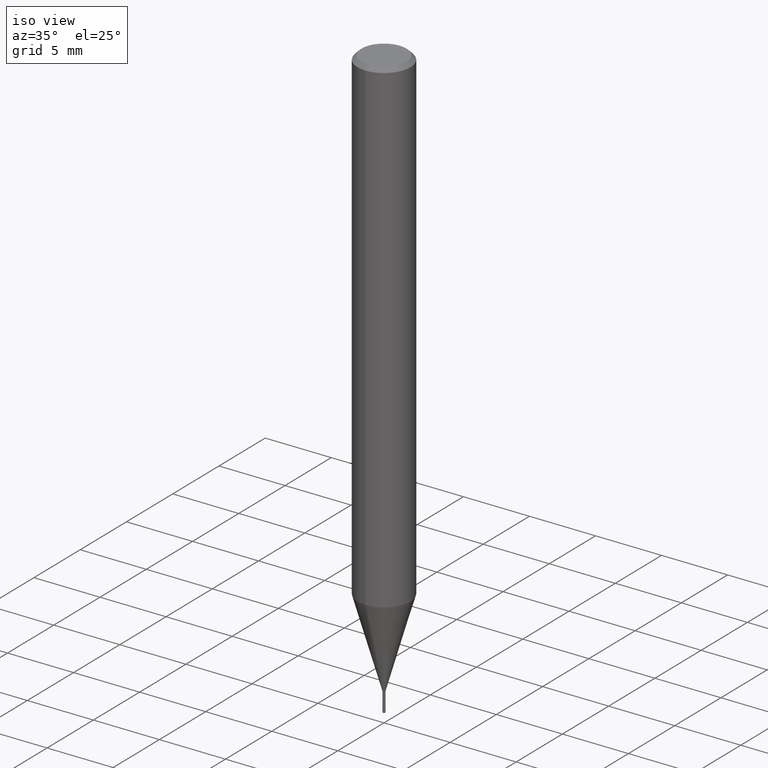
[diagram: clean part render]
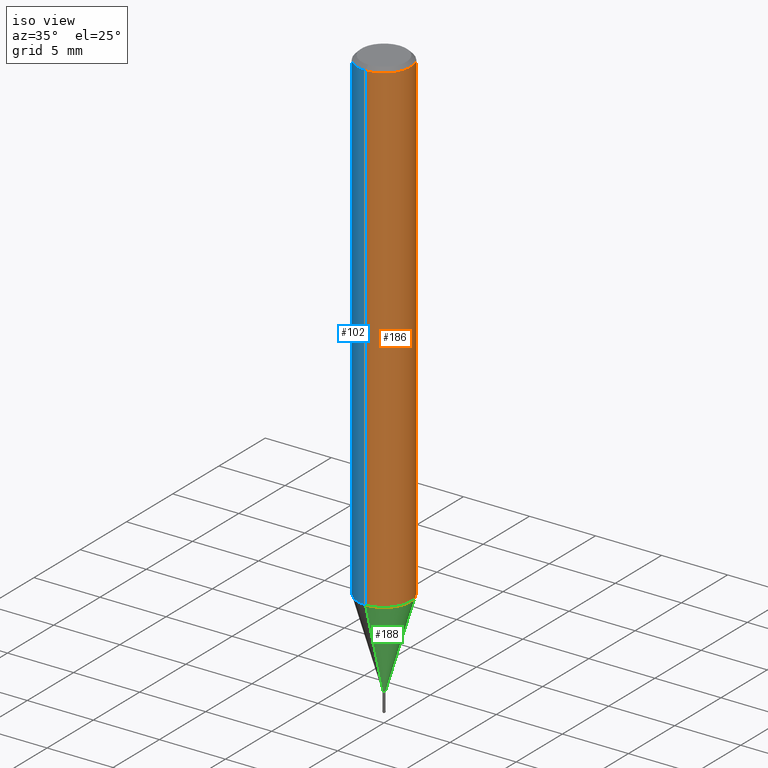
[diagram: same view with three faces highlighted in distinct colors, each labeled with its STEP entity id]
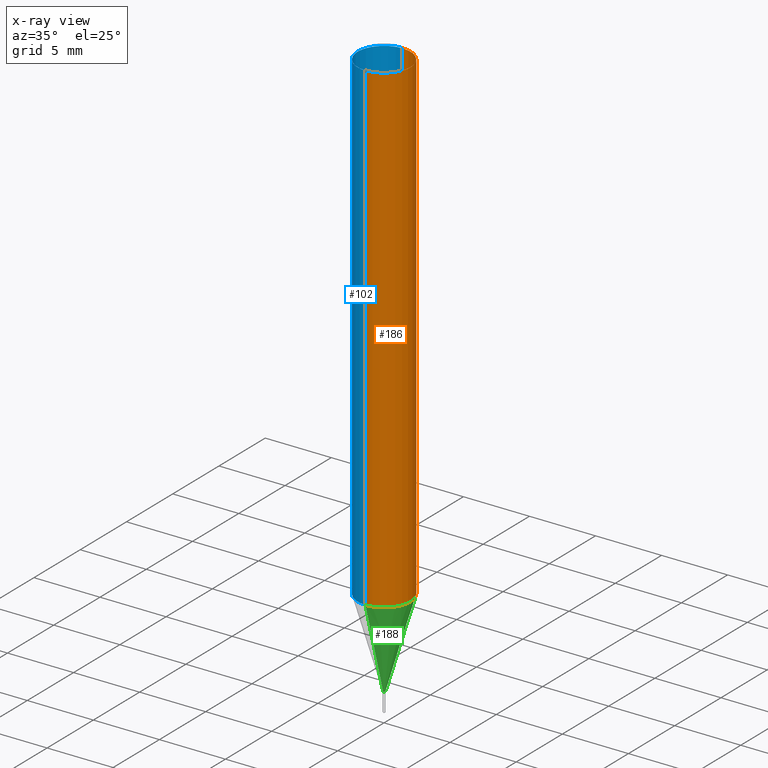
[diagram: x-ray of the same camera — body ghosted, the three highlighted faces saturated]
A machine part, iso view with three faces highlighted in distinct colors.
The next image is the same camera in x-ray (body ghosted, the three faces saturated) — at least one of them is partly hidden behind the body in this view.
Their STEP definitions:

[orange] entity #186 — the highlighted cylindrical surface (edge-blend (fillet) strip) has radius 2 mm, axis along (-0, -0, 1).
#96=VERTEX_POINT('',#237);
#104=VERTEX_POINT('',#246);
#108=EDGE_CURVE('',#214,#104,#250,.T.);
#134=EDGE_CURVE('',#206,#104,#277,.T.);
#166=EDGE_CURVE('',#96,#214,#314,.T.);
#186=ADVANCED_FACE('',(#339),#340,.T.);
#206=VERTEX_POINT('',#364);
#212=EDGE_CURVE('',#206,#96,#370,.T.);
#214=VERTEX_POINT('',#372);
#237=CARTESIAN_POINT('',(0.0,2.0,-36.856));
#246=CARTESIAN_POINT('',(2.44921270764475E-016,-2.0,-0.299999999999997));
#250=LINE('',#405,#406);
#277=CIRCLE('',#442,2.0);
#314=CIRCLE('',#486,2.0);
#339=FACE_OUTER_BOUND('',#516,.T.);
#340=CYLINDRICAL_SURFACE('',#517,2.0);
#364=CARTESIAN_POINT('',(0.0,2.0,-0.299999999999997));
#370=LINE('',#554,#555);
#372=CARTESIAN_POINT('',(2.44921270764475E-016,-2.0,-36.856));
#405=CARTESIAN_POINT('',(2.44921270764475E-016,-2.0,-18.578));
#406=VECTOR('',#574,1.0);
#442=AXIS2_PLACEMENT_3D('',#597,#598,#599);
#486=AXIS2_PLACEMENT_3D('',#651,#652,#653);
#516=EDGE_LOOP('',(#696,#697,#698,#699));
#517=AXIS2_PLACEMENT_3D('',#700,#701,#702);
#554=CARTESIAN_POINT('',(-2.44921270764475E-016,2.0,-18.578));
#555=VECTOR('',#739,1.0);
#574=DIRECTION('',(-0.0,-0.0,1.0));
#597=CARTESIAN_POINT('',(0.0,0.0,-0.299999999999997));
#598=DIRECTION('',(0.0,0.0,-1.0));
#599=DIRECTION('',(0.0,1.0,0.0));
#651=CARTESIAN_POINT('',(0.0,0.0,-36.856));
#652=DIRECTION('',(0.0,0.0,-1.0));
#653=DIRECTION('',(0.0,1.0,0.0));
#696=ORIENTED_EDGE('',*,*,#212,.F.);
#697=ORIENTED_EDGE('',*,*,#134,.T.);
#698=ORIENTED_EDGE('',*,*,#108,.F.);
#699=ORIENTED_EDGE('',*,*,#166,.F.);
#700=CARTESIAN_POINT('',(0.0,0.0,-18.578));
#701=DIRECTION('',(-0.0,-0.0,1.0));
#702=DIRECTION('',(0.0,1.0,0.0));
#739=DIRECTION('',(0.0,0.0,-1.0));

[blue] entity #102 — the highlighted cylindrical surface (edge-blend (fillet) strip) has radius 2 mm, axis along (-0, -0, 1).
#96=VERTEX_POINT('',#237);
#102=ADVANCED_FACE('',(#243),#244,.T.);
#104=VERTEX_POINT('',#246);
#108=EDGE_CURVE('',#214,#104,#250,.T.);
#146=EDGE_CURVE('',#214,#96,#290,.T.);
#158=EDGE_CURVE('',#104,#206,#304,.T.);
#206=VERTEX_POINT('',#364);
#212=EDGE_CURVE('',#206,#96,#370,.T.);
#214=VERTEX_POINT('',#372);
#237=CARTESIAN_POINT('',(0.0,2.0,-36.856));
#243=FACE_OUTER_BOUND('',#396,.T.);
#244=CYLINDRICAL_SURFACE('',#397,2.0);
#246=CARTESIAN_POINT('',(2.44921270764475E-016,-2.0,-0.299999999999997));
#250=LINE('',#405,#406);
#290=CIRCLE('',#458,2.0);
#304=CIRCLE('',#476,2.0);
#364=CARTESIAN_POINT('',(0.0,2.0,-0.299999999999997));
#370=LINE('',#554,#555);
#372=CARTESIAN_POINT('',(2.44921270764475E-016,-2.0,-36.856));
#396=EDGE_LOOP('',(#564,#565,#566,#567));
#397=AXIS2_PLACEMENT_3D('',#568,#569,#570);
#405=CARTESIAN_POINT('',(2.44921270764475E-016,-2.0,-18.578));
#406=VECTOR('',#574,1.0);
#458=AXIS2_PLACEMENT_3D('',#614,#615,#616);
#476=AXIS2_PLACEMENT_3D('',#635,#636,#637);
#554=CARTESIAN_POINT('',(-2.44921270764475E-016,2.0,-18.578));
#555=VECTOR('',#739,1.0);
#564=ORIENTED_EDGE('',*,*,#212,.T.);
#565=ORIENTED_EDGE('',*,*,#146,.F.);
#566=ORIENTED_EDGE('',*,*,#108,.T.);
#567=ORIENTED_EDGE('',*,*,#158,.T.);
#568=CARTESIAN_POINT('',(0.0,0.0,-18.578));
#569=DIRECTION('',(-0.0,-0.0,1.0));
#570=DIRECTION('',(0.0,1.0,0.0));
#574=DIRECTION('',(-0.0,-0.0,1.0));
#614=CARTESIAN_POINT('',(0.0,0.0,-36.856));
#615=DIRECTION('',(0.0,0.0,-1.0));
#616=DIRECTION('',(0.0,1.0,0.0));
#635=CARTESIAN_POINT('',(0.0,0.0,-0.299999999999997));
#636=DIRECTION('',(0.0,0.0,-1.0));
#637=DIRECTION('',(0.0,1.0,0.0));
#739=DIRECTION('',(0.0,0.0,-1.0));

[green] entity #188 — the highlighted conical surface has half-angle 15.999 deg.
#94=VERTEX_POINT('',#235);
#106=EDGE_CURVE('',#94,#132,#248,.T.);
#130=EDGE_CURVE('',#132,#148,#273,.T.);
#132=VERTEX_POINT('',#275);
#148=VERTEX_POINT('',#292);
#176=EDGE_CURVE('',#194,#94,#327,.T.);
#188=ADVANCED_FACE('',(#342),#343,.T.);
#194=VERTEX_POINT('',#349);
#210=EDGE_CURVE('',#194,#148,#368,.T.);
#235=CARTESIAN_POINT('',(0.0,0.09495,-43.5));
#248=CIRCLE('',#402,0.09495);
#273=LINE('',#436,#437);
#275=CARTESIAN_POINT('',(1.16276373295435E-017,-0.09495,-43.5));
#292=CARTESIAN_POINT('',(2.44915147732706E-016,-1.99995,-36.856));
#327=LINE('',#500,#501);
#342=FACE_OUTER_BOUND('',#519,.T.);
#343=CONICAL_SURFACE('',#520,1.04745,0.279233718115795);
#349=CARTESIAN_POINT('',(0.0,1.99995,-36.856));
#368=CIRCLE('',#551,1.99995);
#402=AXIS2_PLACEMENT_3D('',#571,#572,#573);
#436=CARTESIAN_POINT('',(1.28271392531125E-016,-1.04745,-40.178));
#437=VECTOR('',#596,1.0);
#500=CARTESIAN_POINT('',(-1.28271392531125E-016,1.04745,-40.178));
#501=VECTOR('',#676,1.0);
#519=EDGE_LOOP('',(#704,#705,#706,#707));
#520=AXIS2_PLACEMENT_3D('',#708,#709,#710);
#551=AXIS2_PLACEMENT_3D('',#736,#737,#738);
#571=CARTESIAN_POINT('',(0.0,0.0,-43.5));
#572=DIRECTION('',(0.0,0.0,-1.0));
#573=DIRECTION('',(0.0,1.0,0.0));
#596=DIRECTION('',(3.37524935540219E-017,-0.275619128127744,0.961266922457078));
#676=DIRECTION('',(3.37524935540219E-017,-0.275619128127744,-0.961266922457078));
#704=ORIENTED_EDGE('',*,*,#176,.F.);
#705=ORIENTED_EDGE('',*,*,#210,.T.);
#706=ORIENTED_EDGE('',*,*,#130,.F.);
#707=ORIENTED_EDGE('',*,*,#106,.F.);
#708=CARTESIAN_POINT('',(0.0,0.0,-40.178));
#709=DIRECTION('',(-0.0,-0.0,1.0));
#710=DIRECTION('',(0.0,1.0,0.0));
#736=CARTESIAN_POINT('',(0.0,0.0,-36.856));
#737=DIRECTION('',(0.0,0.0,-1.0));
#738=DIRECTION('',(0.0,1.0,0.0));